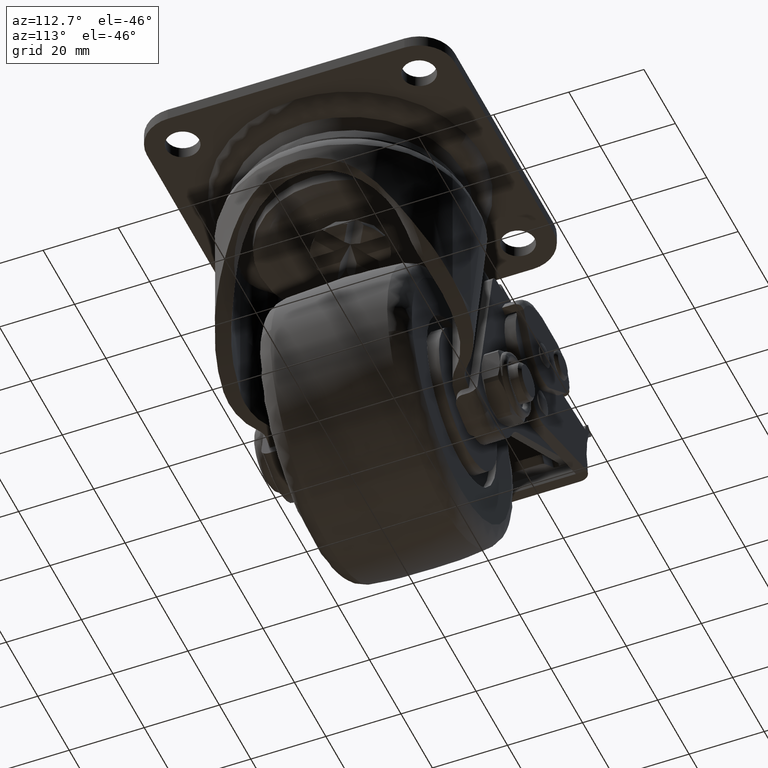
[diagram: clean part render]
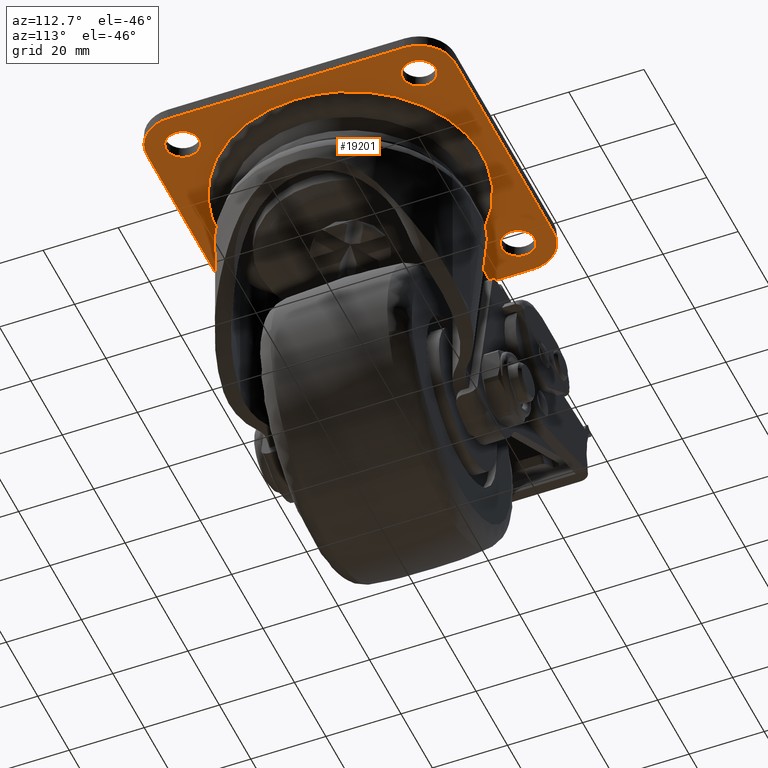
[diagram: same view with one face highlighted and labeled with its STEP entity id]
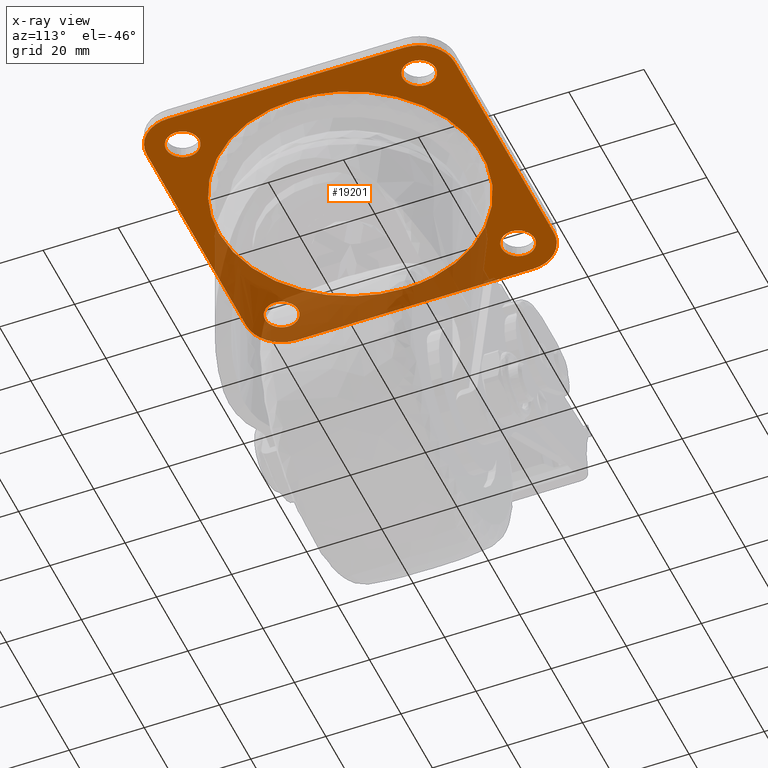
[diagram: x-ray of the same camera — body ghosted, the highlighted face saturated]
A machine part, auxiliary view. The second image highlights one B-rep face of the part: STEP entity #19201.
The next image is the same camera in x-ray: the body ghosted, the highlighted face saturated — about 31% of this face is hidden behind the body in this view.
In plain terms, the highlighted face is a freeform B-spline surface patch.
Its self-contained STEP definition (entity closure, byte-faithful):
#17010=CARTESIAN_POINT('',(-28.308353264321141,34.528759915000620,-3.200000000000000));
#17011=VERTEX_POINT('',#17010);
#17017=CARTESIAN_POINT('',(-27.099999900000000,31.500000000000000,-3.200000000000000));
#17018=VERTEX_POINT('',#17017);
#17019=CARTESIAN_POINT('',(-27.099999900000000,31.500000000000000,-3.200000000000000));
#17020=CARTESIAN_POINT('',(-27.099755168866359,31.952403707884681,-3.200000000000006));
#17021=CARTESIAN_POINT('',(-27.224565473896849,32.752604192243972,-3.199999999999994));
#17022=CARTESIAN_POINT('',(-27.689059866342941,33.773250428027083,-3.200000000000005));
#17023=CARTESIAN_POINT('',(-28.092748911407600,34.301615714025992,-3.199999999999999));
#17024=CARTESIAN_POINT('',(-28.308353264321141,34.528759915000620,-3.200000000000000));
#17025=B_SPLINE_CURVE_WITH_KNOTS('',3,(#17019,#17020,#17021,#17022,#17023,#17024),.UNSPECIFIED.,.F.,.U.,(4,1,1,4),(0.000000065009886,1.357157246809778,2.401082420027407,3.340638549367407),.UNSPECIFIED.);
#17026=EDGE_CURVE('',#17018,#17011,#17025,.T.);
#17028=CARTESIAN_POINT('',(-31.499997554869228,27.099999900000679,-3.200000000000000));
#17029=VERTEX_POINT('',#17028);
#17030=CARTESIAN_POINT('',(-31.499997554869228,27.099999900000679,-3.200000000000000));
#17031=CARTESIAN_POINT('',(-30.887879215266569,27.099174402352588,-3.200000000000006));
#17032=CARTESIAN_POINT('',(-29.988618784239669,27.290872054550849,-3.199999999999990));
#17033=CARTESIAN_POINT('',(-29.013063014463381,27.843830868610318,-3.200000000000012));
#17034=CARTESIAN_POINT('',(-28.371311936081089,28.370450085442592,-3.199999999999991));
#17035=CARTESIAN_POINT('',(-27.764956678003099,29.090898532281081,-3.200000000000000));
#17036=CARTESIAN_POINT('',(-27.239144402179068,30.168223181486908,-3.200000000000003));
#17037=CARTESIAN_POINT('',(-27.099739897394631,31.032003958644999,-3.199999999999997));
#17038=CARTESIAN_POINT('',(-27.099999900000000,31.500000000000000,-3.200000000000000));
#17039=B_SPLINE_CURVE_WITH_KNOTS('',3,(#17030,#17031,#17032,#17033,#17034,#17035,#17036,#17037,#17038),.UNSPECIFIED.,.F.,.U.,(4,1,1,1,1,1,4),(0.000000121400784,1.835921030457358,2.699899587109911,3.347847242049293,4.319760378343268,5.507751337653529,6.911676054007226),.UNSPECIFIED.);
#17040=EDGE_CURVE('',#17029,#17018,#17039,.T.);
#17042=CARTESIAN_POINT('',(-35.900000100000000,31.500000000000000,-3.200000000000000));
#17043=VERTEX_POINT('',#17042);
#17044=CARTESIAN_POINT('',(-35.900000100000000,31.500000000000000,-3.200000000000000));
#17045=CARTESIAN_POINT('',(-35.900291799420167,31.031989269379579,-3.199999999999999));
#17046=CARTESIAN_POINT('',(-35.778179975492357,30.276241156496688,-3.199999999999999));
#17047=CARTESIAN_POINT('',(-35.353060328245192,29.317250245910479,-3.200000000000001));
#17048=CARTESIAN_POINT('',(-34.832373863337288,28.577941954380240,-3.200000000000000));
#17049=CARTESIAN_POINT('',(-34.089454545737098,27.887685589257011,-3.200000000000002));
#17050=CARTESIAN_POINT('',(-32.975643805376272,27.274472917143029,-3.200000000000005));
#17051=CARTESIAN_POINT('',(-32.040007763302171,27.099591790635049,-3.199999999999996));
#17052=CARTESIAN_POINT('',(-31.499997554869228,27.099999900000679,-3.200000000000000));
#17053=B_SPLINE_CURVE_WITH_KNOTS('',3,(#17044,#17045,#17046,#17047,#17048,#17049,#17050,#17051,#17052),.UNSPECIFIED.,.F.,.U.,(4,1,1,1,1,1,4),(0.000000118051084,1.403927485710137,2.267917786371594,3.131867591052502,4.103769456477613,5.291755162450938,6.911678810308247),.UNSPECIFIED.);
#17054=EDGE_CURVE('',#17043,#17029,#17053,.T.);
#17056=CARTESIAN_POINT('',(-34.341265418653457,34.859645368991501,-3.200000000000000));
#17057=VERTEX_POINT('',#17056);
#17058=CARTESIAN_POINT('',(-34.341265418653457,34.859645368991501,-3.200000000000000));
#17059=CARTESIAN_POINT('',(-34.797955502021757,34.474424221009457,-3.200000000000001));
#17060=CARTESIAN_POINT('',(-35.323775813034587,33.802184945111989,-3.200000000000000));
#17061=CARTESIAN_POINT('',(-35.798023665204788,32.614838109149993,-3.200000000000001));
#17062=CARTESIAN_POINT('',(-35.900191925326702,31.938048579515382,-3.199999999999996));
#17063=CARTESIAN_POINT('',(-35.900000100000000,31.500000000000000,-3.200000000000000));
#17064=B_SPLINE_CURVE_WITH_KNOTS('',3,(#17058,#17059,#17060,#17061,#17062,#17063),.UNSPECIFIED.,.F.,.U.,(4,1,1,4),(0.000000044383151,1.791959542184639,2.508741292507824,3.822844869773705),.UNSPECIFIED.);
#17065=EDGE_CURVE('',#17057,#17043,#17064,.T.);
#17100=CARTESIAN_POINT('',(-31.500002445130729,35.900000099999332,-3.200000000000000));
#17101=VERTEX_POINT('',#17100);
#17102=CARTESIAN_POINT('',(-31.500002445130729,35.900000099999332,-3.200000000000000));
#17103=CARTESIAN_POINT('',(-31.982663767974270,35.900295153616717,-3.200000000000004));
#17104=CARTESIAN_POINT('',(-33.012047452098109,35.728829192226463,-3.199999999999998));
#17105=CARTESIAN_POINT('',(-33.923884350278954,35.213252451681321,-3.200000000000003));
#17106=CARTESIAN_POINT('',(-34.341265418653457,34.859645368991501,-3.200000000000000));
#17107=B_SPLINE_CURVE_WITH_KNOTS('',3,(#17102,#17103,#17104,#17105,#17106),.UNSPECIFIED.,.F.,.U.,(4,1,4),(0.000000063013023,1.447911228561446,3.088836453076475),.UNSPECIFIED.);
#17108=EDGE_CURVE('',#17101,#17057,#17107,.T.);
#17110=CARTESIAN_POINT('',(-28.308353264321141,34.528759915000620,-3.200000000000000));
#17111=CARTESIAN_POINT('',(-28.589908744437349,34.825683858160183,-3.200000000000010));
#17112=CARTESIAN_POINT('',(-29.148505130939220,35.269787909078893,-3.199999999999994));
#17113=CARTESIAN_POINT('',(-30.235470066072828,35.769837769859940,-3.200000000000006));
#17114=CARTESIAN_POINT('',(-31.016384560973481,35.900330726292850,-3.199999999999991));
#17115=CARTESIAN_POINT('',(-31.500002445130729,35.900000099999332,-3.200000000000000));
#17116=B_SPLINE_CURVE_WITH_KNOTS('',3,(#17110,#17111,#17112,#17113,#17114,#17115),.UNSPECIFIED.,.F.,.U.,(4,1,1,4),(0.000000056440369,1.227559213190916,2.120290199146011,3.571041424827731),.UNSPECIFIED.);
#17117=EDGE_CURVE('',#17011,#17101,#17116,.T.);
#17211=CARTESIAN_POINT('',(34.691646735678859,34.528759915000627,-3.200000000000000));
#17212=VERTEX_POINT('',#17211);
#17218=CARTESIAN_POINT('',(35.900000100000000,31.500000000000000,-3.200000000000000));
#17219=VERTEX_POINT('',#17218);
#17220=CARTESIAN_POINT('',(35.900000100000000,31.500000000000000,-3.200000000000000));
#17221=CARTESIAN_POINT('',(35.900402232442133,32.022018780154298,-3.200000000000001));
#17222=CARTESIAN_POINT('',(35.699437893693940,33.135229755611412,-3.200000000000002));
#17223=CARTESIAN_POINT('',(35.099390574543953,34.100041004839333,-3.199999999999999));
#17224=CARTESIAN_POINT('',(34.691646735678859,34.528759915000627,-3.200000000000000));
#17225=B_SPLINE_CURVE_WITH_KNOTS('',3,(#17220,#17221,#17222,#17223,#17224),.UNSPECIFIED.,.F.,.U.,(4,1,4),(0.000000065010233,1.565939140259438,3.340638549367416),.UNSPECIFIED.);
#17226=EDGE_CURVE('',#17219,#17212,#17225,.T.);
#17228=CARTESIAN_POINT('',(31.500002445130772,27.099999900000679,-3.200000000000000));
#17229=VERTEX_POINT('',#17228);
#17230=CARTESIAN_POINT('',(31.500002445130772,27.099999900000679,-3.200000000000000));
#17231=CARTESIAN_POINT('',(31.967990642139711,27.099737606855289,-3.199999999999999));
#17232=CARTESIAN_POINT('',(32.795794481199017,27.233362196551631,-3.199999999999998));
#17233=CARTESIAN_POINT('',(33.812157858157818,27.714144113710070,-3.200000000000005));
#17234=CARTESIAN_POINT('',(34.582066565164489,28.315011580413689,-3.199999999999997));
#17235=CARTESIAN_POINT('',(35.095048397378527,28.924668748858931,-3.200000000000005));
#17236=CARTESIAN_POINT('',(35.512746116230247,29.641358062164510,-3.200000000000019));
#17237=CARTESIAN_POINT('',(35.815586404461420,30.456115537613780,-3.199999999999931));
#17238=CARTESIAN_POINT('',(35.900096861123323,31.140024425362210,-3.200000000000093));
#17239=CARTESIAN_POINT('',(35.900000100000000,31.500000000000000,-3.200000000000000));
#17240=B_SPLINE_CURVE_WITH_KNOTS('',3,(#17230,#17231,#17232,#17233,#17234,#17235,#17236,#17237,#17238,#17239),.UNSPECIFIED.,.F.,.U.,(4,1,1,1,1,1,1,4),(0.000000121400432,1.403926928818281,2.483910413831018,3.347847242049842,4.319760378343629,4.859762924989504,5.831754713953130,6.911676054007290),.UNSPECIFIED.);
#17241=EDGE_CURVE('',#17229,#17219,#17240,.T.);
#17243=CARTESIAN_POINT('',(27.099999900000000,31.500000000000000,-3.200000000000000));
#17244=VERTEX_POINT('',#17243);
#17245=CARTESIAN_POINT('',(27.099999900000000,31.500000000000000,-3.200000000000000));
#17246=CARTESIAN_POINT('',(27.099736523513140,31.032010121795320,-3.200000000000001));
#17247=CARTESIAN_POINT('',(27.233366583652810,30.204208718065338,-3.199999999999996));
#17248=CARTESIAN_POINT('',(27.683140095462921,29.253428103626401,-3.200000000000009));
#17249=CARTESIAN_POINT('',(28.263667334869769,28.470590934491320,-3.199999999999991));
#17250=CARTESIAN_POINT('',(28.916753592677690,27.893123518665039,-3.200000000000001));
#17251=CARTESIAN_POINT('',(29.771447325462379,27.422756948174619,-3.200000000000004));
#17252=CARTESIAN_POINT('',(30.600078814081421,27.160268830811571,-3.199999999999998));
#17253=CARTESIAN_POINT('',(31.212036848417370,27.099966019687940,-3.200000000000000));
#17254=CARTESIAN_POINT('',(31.500002445130772,27.099999900000679,-3.200000000000000));
#17255=B_SPLINE_CURVE_WITH_KNOTS('',3,(#17245,#17246,#17247,#17248,#17249,#17250,#17251,#17252,#17253,#17254),.UNSPECIFIED.,.F.,.U.,(4,1,1,1,1,1,1,4),(0.000000118048682,1.403927485708513,2.483911401107960,3.131867591052060,4.319762101266043,5.075763235773200,6.047756297335086,6.911678810308248),.UNSPECIFIED.);
#17256=EDGE_CURVE('',#17244,#17229,#17255,.T.);
#17258=CARTESIAN_POINT('',(28.658734581346540,34.859645368991487,-3.200000000000000));
#17259=VERTEX_POINT('',#17258);
#17260=CARTESIAN_POINT('',(28.658734581346540,34.859645368991487,-3.200000000000000));
#17261=CARTESIAN_POINT('',(28.202051082119500,34.474422964275242,-3.200000000000008));
#17262=CARTESIAN_POINT('',(27.676208714035941,33.802186562693507,-3.199999999999991));
#17263=CARTESIAN_POINT('',(27.202005848792890,32.614835192542962,-3.200000000000008));
#17264=CARTESIAN_POINT('',(27.099769776490600,31.938054281344549,-3.199999999999994));
#17265=CARTESIAN_POINT('',(27.099999900000000,31.500000000000000,-3.200000000000000));
#17266=B_SPLINE_CURVE_WITH_KNOTS('',3,(#17260,#17261,#17262,#17263,#17264,#17265),.UNSPECIFIED.,.F.,.U.,(4,1,1,4),(0.000000044383222,1.791959542184562,2.508741292507761,3.822844869773697),.UNSPECIFIED.);
#17267=EDGE_CURVE('',#17259,#17244,#17266,.T.);
#17303=CARTESIAN_POINT('',(31.499997554869282,35.900000099999332,-3.200000000000000));
#17304=VERTEX_POINT('',#17303);
#17305=CARTESIAN_POINT('',(31.499997554869282,35.900000099999332,-3.200000000000000));
#17306=CARTESIAN_POINT('',(30.952964206472110,35.900480035452787,-3.199999999999998));
#17307=CARTESIAN_POINT('',(29.923797895898620,35.705340061521618,-3.200000000000010));
#17308=CARTESIAN_POINT('',(29.027083085980038,35.171544157418758,-3.199999999999986));
#17309=CARTESIAN_POINT('',(28.658734581346540,34.859645368991487,-3.200000000000000));
#17310=B_SPLINE_CURVE_WITH_KNOTS('',3,(#17305,#17306,#17307,#17308,#17309),.UNSPECIFIED.,.F.,.U.,(4,1,4),(0.000000063012483,1.640925287513024,3.088836453076476),.UNSPECIFIED.);
#17311=EDGE_CURVE('',#17304,#17259,#17310,.T.);
#17313=CARTESIAN_POINT('',(34.691646735678859,34.528759915000627,-3.200000000000000));
#17314=CARTESIAN_POINT('',(34.410090637445272,34.825680125050582,-3.200000000000002));
#17315=CARTESIAN_POINT('',(33.851494987851510,35.269788103050281,-3.199999999999998));
#17316=CARTESIAN_POINT('',(32.764533949316068,35.769865760851538,-3.200000000000003));
#17317=CARTESIAN_POINT('',(31.983612312863531,35.900292606566403,-3.199999999999996));
#17318=CARTESIAN_POINT('',(31.499997554869282,35.900000099999332,-3.200000000000000));
#17319=B_SPLINE_CURVE_WITH_KNOTS('',3,(#17313,#17314,#17315,#17316,#17317,#17318),.UNSPECIFIED.,.F.,.U.,(4,1,1,4),(0.000000056442055,1.227559213192072,2.120290199146686,3.571041424827691),.UNSPECIFIED.);
#17320=EDGE_CURVE('',#17212,#17304,#17319,.T.);
#17412=CARTESIAN_POINT('',(34.691646735678859,-28.471240084999380,-3.200000000000000));
#17413=VERTEX_POINT('',#17412);
#17419=CARTESIAN_POINT('',(35.900000100000000,-31.500000000000000,-3.200000000000000));
#17420=VERTEX_POINT('',#17419);
#17421=CARTESIAN_POINT('',(35.900000100000000,-31.500000000000000,-3.200000000000000));
#17422=CARTESIAN_POINT('',(35.900725570357793,-30.908329567726501,-3.200000000000011));
#17423=CARTESIAN_POINT('',(35.671758813366679,-29.795460237570840,-3.199999999999980));
#17424=CARTESIAN_POINT('',(35.051248740440123,-28.849635657743061,-3.200000000000015));
#17425=CARTESIAN_POINT('',(34.691646735678859,-28.471240084999380,-3.200000000000000));
#17426=B_SPLINE_CURVE_WITH_KNOTS('',3,(#17421,#17422,#17423,#17424,#17425),.UNSPECIFIED.,.F.,.U.,(4,1,4),(0.000000065010979,1.774699474093466,3.340638549367411),.UNSPECIFIED.);
#17427=EDGE_CURVE('',#17420,#17413,#17426,.T.);
#17429=CARTESIAN_POINT('',(31.500002445130772,-35.900000099999332,-3.200000000000000));
#17430=VERTEX_POINT('',#17429);
#17431=CARTESIAN_POINT('',(31.500002445130772,-35.900000099999332,-3.200000000000000));
#17432=CARTESIAN_POINT('',(31.968008409569570,-35.900292697675823,-3.200000000000000));
#17433=CARTESIAN_POINT('',(32.723765268416329,-35.778180283358978,-3.199999999999997));
#17434=CARTESIAN_POINT('',(33.682750282952760,-35.353061271554267,-3.200000000000005));
#17435=CARTESIAN_POINT('',(34.422066291005962,-34.832380310450922,-3.199999999999995));
#17436=CARTESIAN_POINT('',(35.112312492608787,-34.089447889236482,-3.200000000000001));
#17437=CARTESIAN_POINT('',(35.725489139977192,-32.975643938652972,-3.200000000000000));
#17438=CARTESIAN_POINT('',(35.900457456745123,-32.040017620396192,-3.200000000000013));
#17439=CARTESIAN_POINT('',(35.900000100000000,-31.500000000000000,-3.200000000000000));
#17440=B_SPLINE_CURVE_WITH_KNOTS('',3,(#17431,#17432,#17433,#17434,#17435,#17436,#17437,#17438,#17439),.UNSPECIFIED.,.F.,.U.,(4,1,1,1,1,1,4),(0.000000121407071,1.403926928822838,2.267916884912943,3.131866347584523,4.103767821378987,5.291753052125635,6.911676054007220),.UNSPECIFIED.);
#17441=EDGE_CURVE('',#17430,#17420,#17440,.T.);
#17443=CARTESIAN_POINT('',(27.099999900000000,-31.500000000000000,-3.200000000000000));
#17444=VERTEX_POINT('',#17443);
#17445=CARTESIAN_POINT('',(27.099999900000000,-31.500000000000000,-3.200000000000000));
#17446=CARTESIAN_POINT('',(27.099471791416050,-32.040058684978121,-3.199999999999997));
#17447=CARTESIAN_POINT('',(27.240972754172649,-32.795632032709229,-3.200000000000008));
#17448=CARTESIAN_POINT('',(27.688628095086749,-33.741877034866050,-3.199999999999995));
#17449=CARTESIAN_POINT('',(28.209231021798139,-34.481262622097262,-3.200000000000002));
#17450=CARTESIAN_POINT('',(28.971166095211309,-35.155043377457503,-3.200000000000000));
#17451=CARTESIAN_POINT('',(30.096422830055030,-35.738819381242280,-3.200000000000002));
#17452=CARTESIAN_POINT('',(30.959951917890599,-35.900502842690329,-3.200000000000000));
#17453=CARTESIAN_POINT('',(31.500002445130772,-35.900000099999332,-3.200000000000000));
#17454=B_SPLINE_CURVE_WITH_KNOTS('',3,(#17445,#17446,#17447,#17448,#17449,#17450,#17451,#17452,#17453),.UNSPECIFIED.,.F.,.U.,(4,1,1,1,1,1,4),(0.000000118052257,1.619923109508292,2.267917786371913,3.131867591052814,4.319762101266173,5.291755162451232,6.911678810308251),.UNSPECIFIED.);
#17455=EDGE_CURVE('',#17444,#17430,#17454,.T.);
#17457=CARTESIAN_POINT('',(28.658734581346540,-28.140354631008510,-3.200000000000000));
#17458=VERTEX_POINT('',#17457);
#17459=CARTESIAN_POINT('',(28.658734581346540,-28.140354631008510,-3.200000000000000));
#17460=CARTESIAN_POINT('',(28.324153280889991,-28.423079230779500,-3.200000000000001));
#17461=CARTESIAN_POINT('',(27.820233605938309,-28.998687956988370,-3.200000000000000));
#17462=CARTESIAN_POINT('',(27.249396767328300,-30.146377714586819,-3.200000000000001));
#17463=CARTESIAN_POINT('',(27.099575610083679,-30.982267911930620,-3.200000000000001));
#17464=CARTESIAN_POINT('',(27.099999900000000,-31.500000000000000,-3.200000000000000));
#17465=B_SPLINE_CURVE_WITH_KNOTS('',3,(#17459,#17460,#17461,#17462,#17463,#17464),.UNSPECIFIED.,.F.,.U.,(4,1,1,4),(0.000000044383479,1.314103621695932,2.269812850365492,3.822844869773701),.UNSPECIFIED.);
#17466=EDGE_CURVE('',#17458,#17444,#17465,.T.);
#17501=CARTESIAN_POINT('',(31.499997554869282,-27.099999900000679,-3.200000000000000));
#17502=VERTEX_POINT('',#17501);
#17503=CARTESIAN_POINT('',(31.499997554869282,-27.099999900000679,-3.200000000000000));
#17504=CARTESIAN_POINT('',(31.017329261573039,-27.099693429023670,-3.199999999999998));
#17505=CARTESIAN_POINT('',(29.987978382095481,-27.271224132240832,-3.200000000000008));
#17506=CARTESIAN_POINT('',(29.076090042774648,-27.786702011983270,-3.200000000000000));
#17507=CARTESIAN_POINT('',(28.658734581346540,-28.140354631008510,-3.200000000000000));
#17508=B_SPLINE_CURVE_WITH_KNOTS('',3,(#17503,#17504,#17505,#17506,#17507),.UNSPECIFIED.,.F.,.U.,(4,1,4),(0.000000063012795,1.447911228561390,3.088836453076458),.UNSPECIFIED.);
#17509=EDGE_CURVE('',#17502,#17458,#17508,.T.);
#17511=CARTESIAN_POINT('',(34.691646735678859,-28.471240084999380,-3.200000000000000));
#17512=CARTESIAN_POINT('',(34.358962416181747,-28.120235848035090,-3.200000000000006));
#17513=CARTESIAN_POINT('',(33.726800933499497,-27.643557483063478,-3.199999999999996));
#17514=CARTESIAN_POINT('',(32.615843654429383,-27.199331625091610,-3.200000000000001));
#17515=CARTESIAN_POINT('',(31.909187316777341,-27.099848815330720,-3.200000000000006));
#17516=CARTESIAN_POINT('',(31.499997554869282,-27.099999900000679,-3.200000000000000));
#17517=B_SPLINE_CURVE_WITH_KNOTS('',3,(#17511,#17512,#17513,#17514,#17515,#17516),.UNSPECIFIED.,.F.,.U.,(4,1,1,4),(0.000000056441205,1.450751282111843,2.343482268011092,3.571041424827708),.UNSPECIFIED.);
#17518=EDGE_CURVE('',#17413,#17502,#17517,.T.);
#17610=CARTESIAN_POINT('',(-28.308353264321141,-28.471240084999380,-3.200000000000000));
#17611=VERTEX_POINT('',#17610);
#17617=CARTESIAN_POINT('',(-27.099999900000000,-31.500000000000000,-3.200000000000000));
#17618=VERTEX_POINT('',#17617);
#17619=CARTESIAN_POINT('',(-27.099999900000000,-31.500000000000000,-3.200000000000000));
#17620=CARTESIAN_POINT('',(-27.099295851270249,-30.908343058513719,-3.200000000000001));
#17621=CARTESIAN_POINT('',(-27.328237265451410,-29.795438098445189,-3.200000000000001));
#17622=CARTESIAN_POINT('',(-27.948749433015330,-28.849643296353371,-3.199999999999997));
#17623=CARTESIAN_POINT('',(-28.308353264321141,-28.471240084999380,-3.200000000000000));
#17624=B_SPLINE_CURVE_WITH_KNOTS('',3,(#17619,#17620,#17621,#17622,#17623),.UNSPECIFIED.,.F.,.U.,(4,1,4),(0.000000065010560,1.774699474093400,3.340638549367399),.UNSPECIFIED.);
#17625=EDGE_CURVE('',#17618,#17611,#17624,.T.);
#17627=CARTESIAN_POINT('',(-31.499997554869228,-35.900000099999332,-3.200000000000000));
#17628=VERTEX_POINT('',#17627);
#17629=CARTESIAN_POINT('',(-31.499997554869228,-35.900000099999332,-3.200000000000000));
#17630=CARTESIAN_POINT('',(-31.032003989062989,-35.900266353837033,-3.200000000000008));
#17631=CARTESIAN_POINT('',(-30.204222354582740,-35.766623065644502,-3.199999999999991));
#17632=CARTESIAN_POINT('',(-29.155056465183439,-35.270350856335732,-3.200000000000005));
#17633=CARTESIAN_POINT('',(-28.250087418357431,-34.546259254560603,-3.199999999999989));
#17634=CARTESIAN_POINT('',(-27.545229542871361,-33.571254267398501,-3.200000000000032));
#17635=CARTESIAN_POINT('',(-27.167328843575682,-32.471922922343950,-3.199999999999942));
#17636=CARTESIAN_POINT('',(-27.099975203543590,-31.787962606901470,-3.200000000000051));
#17637=CARTESIAN_POINT('',(-27.099999900000000,-31.500000000000000,-3.200000000000000));
#17638=B_SPLINE_CURVE_WITH_KNOTS('',3,(#17629,#17630,#17631,#17632,#17633,#17634,#17635,#17636,#17637),.UNSPECIFIED.,.F.,.U.,(4,1,1,1,1,1,4),(0.000000121405204,1.403926928821221,2.483910413833152,3.455838207368080,4.859762924990159,6.047753885116464,6.911676054007178),.UNSPECIFIED.);
#17639=EDGE_CURVE('',#17628,#17618,#17638,.T.);
#17641=CARTESIAN_POINT('',(-35.900000100000000,-31.500000000000000,-3.200000000000000));
#17642=VERTEX_POINT('',#17641);
#17643=CARTESIAN_POINT('',(-35.900000100000000,-31.500000000000000,-3.200000000000000));
#17644=CARTESIAN_POINT('',(-35.900235366504518,-31.967998953764940,-3.200000000000002));
#17645=CARTESIAN_POINT('',(-35.778235318250189,-32.723772791677114,-3.200000000000003));
#17646=CARTESIAN_POINT('',(-35.353046813163417,-33.682745637187217,-3.200000000000000));
#17647=CARTESIAN_POINT('',(-34.832377381720860,-34.422065572154523,-3.200000000000004));
#17648=CARTESIAN_POINT('',(-34.089447566114600,-35.112308796604800,-3.199999999999984));
#17649=CARTESIAN_POINT('',(-32.975640703471157,-35.725492626901243,-3.200000000000009));
#17650=CARTESIAN_POINT('',(-32.040014549434481,-35.900453950484533,-3.199999999999999));
#17651=CARTESIAN_POINT('',(-31.499997554869228,-35.900000099999332,-3.200000000000000));
#17652=B_SPLINE_CURVE_WITH_KNOTS('',3,(#17643,#17644,#17645,#17646,#17647,#17648,#17649,#17650,#17651),.UNSPECIFIED.,.F.,.U.,(4,1,1,1,1,1,4),(0.000000118047346,1.403927485707417,2.267917786369599,3.131867591051378,4.103769456477325,5.291755162450929,6.911678810308250),.UNSPECIFIED.);
#17653=EDGE_CURVE('',#17642,#17628,#17652,.T.);
#17655=CARTESIAN_POINT('',(-34.341265418653457,-28.140354631008499,-3.200000000000000));
#17656=VERTEX_POINT('',#17655);
#17657=CARTESIAN_POINT('',(-34.341265418653457,-28.140354631008499,-3.200000000000000));
#17658=CARTESIAN_POINT('',(-34.797869918001219,-28.525624099044460,-3.199999999999997));
#17659=CARTESIAN_POINT('',(-35.373969031347272,-29.261799320664711,-3.200000000000008));
#17660=CARTESIAN_POINT('',(-35.816799631807662,-30.464738226147581,-3.199999999999991));
#17661=CARTESIAN_POINT('',(-35.900085500621522,-31.141613694340091,-3.200000000000010));
#17662=CARTESIAN_POINT('',(-35.900000100000000,-31.500000000000000,-3.200000000000000));
#17663=B_SPLINE_CURVE_WITH_KNOTS('',3,(#17657,#17658,#17659,#17660,#17661,#17662),.UNSPECIFIED.,.F.,.U.,(4,1,1,4),(0.000000044383658,1.791959542184719,2.747669677027647,3.822844869773684),.UNSPECIFIED.);
#17664=EDGE_CURVE('',#17656,#17642,#17663,.T.);
#17699=CARTESIAN_POINT('',(-31.500002445130729,-27.099999900000679,-3.200000000000000));
#17700=VERTEX_POINT('',#17699);
#17701=CARTESIAN_POINT('',(-31.500002445130729,-27.099999900000679,-3.200000000000000));
#17702=CARTESIAN_POINT('',(-31.982664480362018,-27.099705592052690,-3.200000000000001));
#17703=CARTESIAN_POINT('',(-33.012048271030558,-27.271172074165172,-3.200000000000007));
#17704=CARTESIAN_POINT('',(-33.923885201437614,-27.786744220533141,-3.199999999999996));
#17705=CARTESIAN_POINT('',(-34.341265418653457,-28.140354631008499,-3.200000000000000));
#17706=B_SPLINE_CURVE_WITH_KNOTS('',3,(#17701,#17702,#17703,#17704,#17705),.UNSPECIFIED.,.F.,.U.,(4,1,4),(0.000000063012931,1.447911228561051,3.088836453076474),.UNSPECIFIED.);
#17707=EDGE_CURVE('',#17700,#17656,#17706,.T.);
#17709=CARTESIAN_POINT('',(-28.308353264321141,-28.471240084999380,-3.200000000000000));
#17710=CARTESIAN_POINT('',(-28.513165615362560,-28.255359880141810,-3.199999999999997));
#17711=CARTESIAN_POINT('',(-28.995168375484539,-27.841023133387282,-3.199999999999997));
#17712=CARTESIAN_POINT('',(-30.049638683591400,-27.272184058193830,-3.200000000000010));
#17713=CARTESIAN_POINT('',(-30.941952080036021,-27.099451853056280,-3.199999999999988));
#17714=CARTESIAN_POINT('',(-31.500002445130729,-27.099999900000679,-3.200000000000000));
#17715=B_SPLINE_CURVE_WITH_KNOTS('',3,(#17709,#17710,#17711,#17712,#17713,#17714),.UNSPECIFIED.,.F.,.U.,(4,1,1,4),(0.000000056440475,0.892760398488921,1.897107744589144,3.571041424827716),.UNSPECIFIED.);
#17716=EDGE_CURVE('',#17611,#17700,#17715,.T.);
#18486=CARTESIAN_POINT('',(7.849476059054613,34.108438052510749,-3.200000000155847));
#18487=VERTEX_POINT('',#18486);
#18500=CARTESIAN_POINT('',(34.999997439804659,0.0,-3.200000000000000));
#18501=VERTEX_POINT('',#18500);
#18502=CARTESIAN_POINT('',(7.849476059054613,34.108438052510749,-3.200000000155847));
#18503=CARTESIAN_POINT('',(10.059073236796380,33.600239284704926,-3.200000000143161));
#18504=CARTESIAN_POINT('',(12.977707555032239,32.621682781761592,-3.200000000126414));
#18505=CARTESIAN_POINT('',(17.494627057661070,30.413683555108761,-3.200000000100506));
#18506=CARTESIAN_POINT('',(21.318794423157200,27.947209645909840,-3.200000000078466));
#18507=CARTESIAN_POINT('',(25.063624089989421,24.575096591891018,-3.200000000057138));
#18508=CARTESIAN_POINT('',(28.011526302697970,21.120496833276839,-3.200000000039997));
#18509=CARTESIAN_POINT('',(30.839754420472481,16.881160783786740,-3.200000000023946));
#18510=CARTESIAN_POINT('',(33.203503883717943,11.664484441373180,-3.200000000010296));
#18511=CARTESIAN_POINT('',(34.689968248911867,5.698760244343601,-3.200000000001775));
#18512=CARTESIAN_POINT('',(35.000107002996117,1.899600853582076,-3.200000000000013));
#18513=CARTESIAN_POINT('',(34.999997439804659,0.0,-3.200000000000000));
#18514=B_SPLINE_CURVE_WITH_KNOTS('',3,(#18502,#18503,#18504,#18505,#18506,#18507,#18508,#18509,#18510,#18511,#18512,#18513),.UNSPECIFIED.,.F.,.U.,(4,1,1,1,1,1,1,1,1,4),(0.000000076373261,6.801779967991138,9.191609990002661,15.074277607612141,20.405451144098340,24.265840886069221,28.677825076930510,35.663497237066167,41.362312839711727,47.061108602837180),.UNSPECIFIED.);
#18515=EDGE_CURVE('',#18487,#18501,#18514,.T.);
#18517=CARTESIAN_POINT('',(-0.000001765042528,-34.999997439804623,-3.200000000000001));
#18518=VERTEX_POINT('',#18517);
#18519=CARTESIAN_POINT('',(34.999997439804659,0.0,-3.200000000000000));
#18520=CARTESIAN_POINT('',(35.000640643717603,-2.720315191016622,-3.199999999999999));
#18521=CARTESIAN_POINT('',(34.488199502689277,-7.086745284750113,-3.200000000000002));
#18522=CARTESIAN_POINT('',(32.921216050246493,-12.085708169875030,-3.199999999999999));
#18523=CARTESIAN_POINT('',(31.318095781403890,-15.762989295458389,-3.200000000000007));
#18524=CARTESIAN_POINT('',(29.243404754828681,-19.451964629823049,-3.199999999999985));
#18525=CARTESIAN_POINT('',(26.394176565000809,-23.149374132806500,-3.200000000000028));
#18526=CARTESIAN_POINT('',(23.282737796542261,-26.222715248297209,-3.200000000000034));
#18527=CARTESIAN_POINT('',(19.860549359758821,-28.944639369590320,-3.199999999999842));
#18528=CARTESIAN_POINT('',(16.041537834170370,-31.233653175230749,-3.200000000000370));
#18529=CARTESIAN_POINT('',(12.081841392126790,-32.916559095252900,-3.199999999999841));
#18530=CARTESIAN_POINT('',(8.245171031570900,-34.093301140963597,-3.200000000000110));
#18531=CARTESIAN_POINT('',(4.295121285767583,-34.828747406097037,-3.199999999999858));
#18532=CARTESIAN_POINT('',(1.360110015714629,-35.000022425990551,-3.200000000000103));
#18533=CARTESIAN_POINT('',(-0.000001765042528,-34.999997439804623,-3.200000000000001));
#18534=B_SPLINE_CURVE_WITH_KNOTS('',3,(#18519,#18520,#18521,#18522,#18523,#18524,#18525,#18526,#18527,#18528,#18529,#18530,#18531,#18532,#18533),.UNSPECIFIED.,.F.,.U.,(4,1,1,1,1,1,1,1,1,1,1,1,4),(0.000000110119316,8.160764894027238,13.100214942246319,15.677319158626560,20.187228002176919,25.770967431260519,29.636488520739672,33.287387239219321,38.871129704831638,42.951529672828627,46.172920236494051,50.897610740747403,54.977954655403863),.UNSPECIFIED.);
#18535=EDGE_CURVE('',#18501,#18518,#18534,.T.);
#18537=CARTESIAN_POINT('',(-34.999997439804659,0.0,-3.200000000000000));
#18538=VERTEX_POINT('',#18537);
#18539=CARTESIAN_POINT('',(-0.000001765042528,-34.999997439804623,-3.200000000000001));
#18540=CARTESIAN_POINT('',(-1.789649120993520,-35.000097687552334,-3.200000000000000));
#18541=CARTESIAN_POINT('',(-5.368906412791644,-34.724896744163452,-3.200000000000000));
#18542=CARTESIAN_POINT('',(-10.471923413286641,-33.529560603204352,-3.200000000000010));
#18543=CARTESIAN_POINT('',(-15.809243382784610,-31.414300402770849,-3.199999999999985));
#18544=CARTESIAN_POINT('',(-20.419367553025939,-28.612425355905469,-3.200000000000023));
#18545=CARTESIAN_POINT('',(-24.896069536324340,-24.798402571610939,-3.199999999999953));
#18546=CARTESIAN_POINT('',(-28.605732003634710,-20.498099749919540,-3.200000000000007));
#18547=CARTESIAN_POINT('',(-31.443187099860559,-15.663430704327840,-3.199999999999995));
#18548=CARTESIAN_POINT('',(-33.133340126162039,-11.473900014693269,-3.200000000000034));
#18549=CARTESIAN_POINT('',(-34.555371275364159,-6.514070885994022,-3.199999999999933));
#18550=CARTESIAN_POINT('',(-35.000662192037161,-2.720324054194850,-3.200000000000014));
#18551=CARTESIAN_POINT('',(-34.999997439804659,0.0,-3.200000000000000));
#18552=B_SPLINE_CURVE_WITH_KNOTS('',3,(#18539,#18540,#18541,#18542,#18543,#18544,#18545,#18546,#18547,#18548,#18549,#18550,#18551),.UNSPECIFIED.,.F.,.U.,(4,1,1,1,1,1,1,1,1,1,4),(0.000000110216462,5.368934708201856,10.737876809006620,15.677318591378050,22.549551714822250,26.844710135099781,33.287386034428607,39.515400928993422,43.595800749332732,46.817195759233641,54.977952665786361),.UNSPECIFIED.);
#18553=EDGE_CURVE('',#18518,#18538,#18552,.T.);
#18555=CARTESIAN_POINT('',(-34.108438052510749,7.849476059054615,-3.200000000155848));
#18556=VERTEX_POINT('',#18555);
#18557=CARTESIAN_POINT('',(-34.999997439804659,0.0,-3.200000000000000));
#18558=CARTESIAN_POINT('',(-35.000227380674453,2.638958045785072,-3.199999999999974));
#18559=CARTESIAN_POINT('',(-34.700661565155158,5.277811178289611,-3.200000000052290));
#18560=CARTESIAN_POINT('',(-34.108438052510749,7.849476059054615,-3.200000000155848));
#18561=B_SPLINE_CURVE_WITH_KNOTS('',3,(#18557,#18558,#18559,#18560),.UNSPECIFIED.,.F.,.U.,(4,4),(2.365670E-009,7.916829389401580),.UNSPECIFIED.);
#18562=EDGE_CURVE('',#18538,#18556,#18561,.T.);
#18658=CARTESIAN_POINT('',(-34.108438052510749,7.849476059054615,-3.200000000155848));
#18659=CARTESIAN_POINT('',(-33.643055146714552,9.872625028536284,-3.200000000138061));
#18660=CARTESIAN_POINT('',(-32.350645428254879,13.835640311580290,-3.200000000105541));
#18661=CARTESIAN_POINT('',(-29.731216788380230,18.710367527219770,-3.200000000072309));
#18662=CARTESIAN_POINT('',(-26.946073279659469,22.447781468074389,-3.200000000051847));
#18663=CARTESIAN_POINT('',(-24.158517674361740,25.435182000043419,-3.200000000038892));
#18664=CARTESIAN_POINT('',(-20.821363775719920,28.265512489244738,-3.200000000031425));
#18665=CARTESIAN_POINT('',(-16.224973527907341,31.201585696466012,-3.200000000030681));
#18666=CARTESIAN_POINT('',(-10.924052476187599,33.440780367902128,-3.200000000041946));
#18667=CARTESIAN_POINT('',(-5.324710310720507,34.720844652911829,-3.200000000064635));
#18668=CARTESIAN_POINT('',(0.828486009664584,35.199043377189852,-3.200000000099440));
#18669=CARTESIAN_POINT('',(5.198592833072290,34.719100028815816,-3.200000000132622));
#18670=CARTESIAN_POINT('',(7.849476059054613,34.108438052510749,-3.200000000155847));
#18671=B_SPLINE_CURVE_WITH_KNOTS('',3,(#18658,#18659,#18660,#18661,#18662,#18663,#18664,#18665,#18666,#18667,#18668,#18669,#18670),.UNSPECIFIED.,.F.,.U.,(4,1,1,1,1,1,1,1,1,1,4),(0.000000110186477,6.227928570896864,12.455942735599530,16.536343476276979,20.187227636719349,24.697189412559290,29.636487984420569,36.508790248653192,41.877739430259638,46.817196606336097,54.977953660501029),.UNSPECIFIED.);
#18672=EDGE_CURVE('',#18556,#18487,#18671,.T.);
#18905=CARTESIAN_POINT('',(41.0,-31.500000000000000,-3.200000000000000));
#18906=VERTEX_POINT('',#18905);
#18912=CARTESIAN_POINT('',(41.0,31.500000000000000,-3.200000000000000));
#18913=VERTEX_POINT('',#18912);
#18914=CARTESIAN_POINT('',(41.0,-31.500000000000000,-3.200000000000000));
#18915=CARTESIAN_POINT('',(41.0,31.500000000000000,-3.200000000000000));
#18916=QUASI_UNIFORM_CURVE('',1,(#18914,#18915),.UNSPECIFIED.,.F.,.U.);
#18917=EDGE_CURVE('',#18906,#18913,#18916,.T.);
#18942=CARTESIAN_POINT('',(31.500000000000000,-41.0,-3.200000000000000));
#18943=VERTEX_POINT('',#18942);
#18949=CARTESIAN_POINT('',(31.500000000000000,-41.0,-3.200000000000000));
#18950=CARTESIAN_POINT('',(32.160622997921877,-41.000071153966431,-3.199999999999997));
#18951=CARTESIAN_POINT('',(33.559599065273197,-40.853550409189801,-3.200000000000004));
#18952=CARTESIAN_POINT('',(35.635878377934937,-40.153680039002097,-3.200000000000002));
#18953=CARTESIAN_POINT('',(37.455191377536629,-39.001441962178632,-3.199999999999991));
#18954=CARTESIAN_POINT('',(38.890961165810801,-37.565608755035171,-3.200000000000006));
#18955=CARTESIAN_POINT('',(39.802036196960707,-36.201942823027061,-3.200000000000013));
#18956=CARTESIAN_POINT('',(40.483064015250179,-34.715219494959712,-3.199999999999989));
#18957=CARTESIAN_POINT('',(40.899617308407308,-33.209859679548799,-3.200000000000044));
#18958=CARTESIAN_POINT('',(41.000034255208647,-32.044037474916927,-3.199999999999945));
#18959=CARTESIAN_POINT('',(41.0,-31.500000000000000,-3.200000000000000));
#18960=B_SPLINE_CURVE_WITH_KNOTS('',3,(#18949,#18950,#18951,#18952,#18953,#18954,#18955,#18956,#18957,#18958,#18959),.UNSPECIFIED.,.F.,.U.,(4,1,1,1,1,1,1,1,4),(0.000000208856440,1.981880927445783,4.197001657323069,6.528721072670617,8.393937787441463,10.259315869682560,11.425163117456680,13.290537470795719,14.922658737325330),.UNSPECIFIED.);
#18961=EDGE_CURVE('',#18943,#18906,#18960,.T.);
#18973=CARTESIAN_POINT('',(-31.499995025812201,-40.999999999998700,-3.200000000000000));
#18974=VERTEX_POINT('',#18973);
#18980=CARTESIAN_POINT('',(-31.499995025812201,-40.999999999998700,-3.200000000000000));
#18981=CARTESIAN_POINT('',(31.500000000000000,-41.0,-3.200000000000000));
#18982=QUASI_UNIFORM_CURVE('',1,(#18980,#18981),.UNSPECIFIED.,.F.,.U.);
#18983=EDGE_CURVE('',#18974,#18943,#18982,.T.);
#19004=CARTESIAN_POINT('',(-41.0,-31.500000000000000,-3.200000000000000));
#19005=VERTEX_POINT('',#19004);
#19011=CARTESIAN_POINT('',(-41.0,-31.500000000000000,-3.200000000000000));
#19012=CARTESIAN_POINT('',(-41.000122060487847,-32.199498377720182,-3.200000000000018));
#19013=CARTESIAN_POINT('',(-40.862013791217983,-33.442995532575260,-3.199999999999966));
#19014=CARTESIAN_POINT('',(-40.273079735840277,-35.302201789150757,-3.200000000000030));
#19015=CARTESIAN_POINT('',(-39.462422126601780,-36.775062687104452,-3.199999999999985));
#19016=CARTESIAN_POINT('',(-38.309743340844904,-38.197264595970857,-3.199999999999995));
#19017=CARTESIAN_POINT('',(-37.095975131900971,-39.244302076873900,-3.200000000000005));
#19018=CARTESIAN_POINT('',(-35.614608142320400,-40.107562748196649,-3.199999999999989));
#19019=CARTESIAN_POINT('',(-33.831473103752003,-40.795502909506567,-3.199999999999989));
#19020=CARTESIAN_POINT('',(-32.393832163820122,-41.000367329256392,-3.200000000000025));
#19021=CARTESIAN_POINT('',(-31.499995025812201,-40.999999999998700,-3.200000000000000));
#19022=B_SPLINE_CURVE_WITH_KNOTS('',3,(#19011,#19012,#19013,#19014,#19015,#19016,#19017,#19018,#19019,#19020,#19021),.UNSPECIFIED.,.F.,.U.,(4,1,1,1,1,1,1,1,4),(0.000000207980788,2.098490612368574,3.730666134160899,5.829208805817215,7.111598502130856,9.210055166620833,10.609072573558411,12.241268522102800,14.922661540876909),.UNSPECIFIED.);
#19023=EDGE_CURVE('',#19005,#18974,#19022,.T.);
#19035=CARTESIAN_POINT('',(-40.999999999997698,31.500006632251299,-3.200000000000000));
#19036=VERTEX_POINT('',#19035);
#19042=CARTESIAN_POINT('',(-40.999999999997698,31.500006632251299,-3.200000000000000));
#19043=CARTESIAN_POINT('',(-41.0,-31.500000000000000,-3.200000000000000));
#19044=QUASI_UNIFORM_CURVE('',1,(#19042,#19043),.UNSPECIFIED.,.F.,.U.);
#19045=EDGE_CURVE('',#19036,#19005,#19044,.T.);
#19066=CARTESIAN_POINT('',(-31.500000000000000,41.0,-3.200000000000000));
#19067=VERTEX_POINT('',#19066);
#19073=CARTESIAN_POINT('',(-31.500000000000000,41.0,-3.200000000000000));
#19074=CARTESIAN_POINT('',(-32.277226330909393,41.000169536188999,-3.200000000000001));
#19075=CARTESIAN_POINT('',(-33.520669447173603,40.846526393704167,-3.200000000000003));
#19076=CARTESIAN_POINT('',(-35.222661873936431,40.284198032254167,-3.199999999999993));
#19077=CARTESIAN_POINT('',(-36.538311667468008,39.601612394766398,-3.200000000000017));
#19078=CARTESIAN_POINT('',(-37.790183588974692,38.673096915134593,-3.200000000000000));
#19079=CARTESIAN_POINT('',(-39.097915156597672,37.333283672289070,-3.199999999999981));
#19080=CARTESIAN_POINT('',(-40.229457203126273,35.497040000496142,-3.200000000000092));
#19081=CARTESIAN_POINT('',(-40.878075895859268,33.404178726294383,-3.199999999999924));
#19082=CARTESIAN_POINT('',(-41.000044731526962,32.082908268255920,-3.200000000000036));
#19083=CARTESIAN_POINT('',(-40.999999999997698,31.500006632251299,-3.200000000000000));
#19084=B_SPLINE_CURVE_WITH_KNOTS('',3,(#19073,#19074,#19075,#19076,#19077,#19078,#19079,#19080,#19081,#19082,#19083),.UNSPECIFIED.,.F.,.U.,(4,1,1,1,1,1,1,1,4),(0.000000210004739,2.331636800240101,3.730664500584419,5.362854425994279,6.761855096384224,8.393935683677444,10.958822342192200,13.173931469572510,14.922654999254441),.UNSPECIFIED.);
#19085=EDGE_CURVE('',#19067,#19036,#19084,.T.);
#19097=CARTESIAN_POINT('',(31.500000000000000,41.0,-3.200000000000000));
#19098=VERTEX_POINT('',#19097);
#19104=CARTESIAN_POINT('',(31.500000000000000,41.0,-3.200000000000000));
#19105=CARTESIAN_POINT('',(-31.500000000000000,41.0,-3.200000000000000));
#19106=QUASI_UNIFORM_CURVE('',1,(#19104,#19105),.UNSPECIFIED.,.F.,.U.);
#19107=EDGE_CURVE('',#19098,#19067,#19106,.T.);
#19129=CARTESIAN_POINT('',(41.0,31.500000000000000,-3.200000000000000));
#19130=CARTESIAN_POINT('',(41.000071153966431,32.160622997921877,-3.199999999999997));
#19131=CARTESIAN_POINT('',(40.853550409189801,33.559599065273197,-3.200000000000004));
#19132=CARTESIAN_POINT('',(40.153680039002097,35.635878377934937,-3.200000000000002));
#19133=CARTESIAN_POINT('',(39.001441962178632,37.455191377536629,-3.199999999999991));
#19134=CARTESIAN_POINT('',(37.565608755035171,38.890961165810801,-3.200000000000006));
#19135=CARTESIAN_POINT('',(36.201942823027061,39.802036196960707,-3.200000000000013));
#19136=CARTESIAN_POINT('',(34.715219494959712,40.483064015250179,-3.199999999999989));
#19137=CARTESIAN_POINT('',(33.209859679548799,40.899617308407308,-3.200000000000044));
#19138=CARTESIAN_POINT('',(32.044037474916927,41.000034255208647,-3.199999999999945));
#19139=CARTESIAN_POINT('',(31.500000000000000,41.0,-3.200000000000000));
#19140=B_SPLINE_CURVE_WITH_KNOTS('',3,(#19129,#19130,#19131,#19132,#19133,#19134,#19135,#19136,#19137,#19138,#19139),.UNSPECIFIED.,.F.,.U.,(4,1,1,1,1,1,1,1,4),(0.000000208856440,1.981880927445783,4.197001657323069,6.528721072670617,8.393937787441463,10.259315869682560,11.425163117456680,13.290537470795719,14.922658737325330),.UNSPECIFIED.);
#19141=EDGE_CURVE('',#18913,#19098,#19140,.T.);
#19147=CARTESIAN_POINT('',(-45.095899841068082,45.095899841068103,-3.200000000000000));
#19148=CARTESIAN_POINT('',(45.095902040479487,45.095899841068103,-3.200000000000000));
#19149=CARTESIAN_POINT('',(-45.095899841068082,-45.095902040479487,-3.200000000000000));
#19150=CARTESIAN_POINT('',(45.095902040479487,-45.095902040479487,-3.200000000000000));
#19151=B_SPLINE_SURFACE_WITH_KNOTS('',1,1,((#19147,#19149),(#19148,#19150)),.UNSPECIFIED.,.F.,.F.,.U.,(2,2),(2,2),(0.0,90.191801881547576),(0.0,90.191801881547576),.UNSPECIFIED.);
#19152=ORIENTED_EDGE('',*,*,#19141,.F.);
#19153=ORIENTED_EDGE('',*,*,#18917,.F.);
#19154=ORIENTED_EDGE('',*,*,#18961,.F.);
#19155=ORIENTED_EDGE('',*,*,#18983,.F.);
#19156=ORIENTED_EDGE('',*,*,#19023,.F.);
#19157=ORIENTED_EDGE('',*,*,#19045,.F.);
#19158=ORIENTED_EDGE('',*,*,#19085,.F.);
#19159=ORIENTED_EDGE('',*,*,#19107,.F.);
#19160=EDGE_LOOP('',(#19152,#19153,#19154,#19155,#19156,#19157,#19158,#19159));
#19161=FACE_OUTER_BOUND('',#19160,.T.);
#19162=ORIENTED_EDGE('',*,*,#18562,.F.);
#19163=ORIENTED_EDGE('',*,*,#18553,.F.);
#19164=ORIENTED_EDGE('',*,*,#18535,.F.);
#19165=ORIENTED_EDGE('',*,*,#18515,.F.);
#19166=ORIENTED_EDGE('',*,*,#18672,.F.);
#19167=EDGE_LOOP('',(#19162,#19163,#19164,#19165,#19166));
#19168=FACE_BOUND('',#19167,.T.);
#19169=ORIENTED_EDGE('',*,*,#17653,.T.);
#19170=ORIENTED_EDGE('',*,*,#17639,.T.);
#19171=ORIENTED_EDGE('',*,*,#17625,.T.);
#19172=ORIENTED_EDGE('',*,*,#17716,.T.);
#19173=ORIENTED_EDGE('',*,*,#17707,.T.);
#19174=ORIENTED_EDGE('',*,*,#17664,.T.);
#19175=EDGE_LOOP('',(#19169,#19170,#19171,#19172,#19173,#19174));
#19176=FACE_BOUND('',#19175,.T.);
#19177=ORIENTED_EDGE('',*,*,#17455,.T.);
#19178=ORIENTED_EDGE('',*,*,#17441,.T.);
#19179=ORIENTED_EDGE('',*,*,#17427,.T.);
#19180=ORIENTED_EDGE('',*,*,#17518,.T.);
#19181=ORIENTED_EDGE('',*,*,#17509,.T.);
#19182=ORIENTED_EDGE('',*,*,#17466,.T.);
#19183=EDGE_LOOP('',(#19177,#19178,#19179,#19180,#19181,#19182));
#19184=FACE_BOUND('',#19183,.T.);
#19185=ORIENTED_EDGE('',*,*,#17256,.T.);
#19186=ORIENTED_EDGE('',*,*,#17241,.T.);
#19187=ORIENTED_EDGE('',*,*,#17226,.T.);
#19188=ORIENTED_EDGE('',*,*,#17320,.T.);
#19189=ORIENTED_EDGE('',*,*,#17311,.T.);
#19190=ORIENTED_EDGE('',*,*,#17267,.T.);
#19191=EDGE_LOOP('',(#19185,#19186,#19187,#19188,#19189,#19190));
#19192=FACE_BOUND('',#19191,.T.);
#19193=ORIENTED_EDGE('',*,*,#17054,.T.);
#19194=ORIENTED_EDGE('',*,*,#17040,.T.);
#19195=ORIENTED_EDGE('',*,*,#17026,.T.);
#19196=ORIENTED_EDGE('',*,*,#17117,.T.);
#19197=ORIENTED_EDGE('',*,*,#17108,.T.);
#19198=ORIENTED_EDGE('',*,*,#17065,.T.);
#19199=EDGE_LOOP('',(#19193,#19194,#19195,#19196,#19197,#19198));
#19200=FACE_BOUND('',#19199,.T.);
#19201=ADVANCED_FACE('',(#19161,#19168,#19176,#19184,#19192,#19200),#19151,.T.);